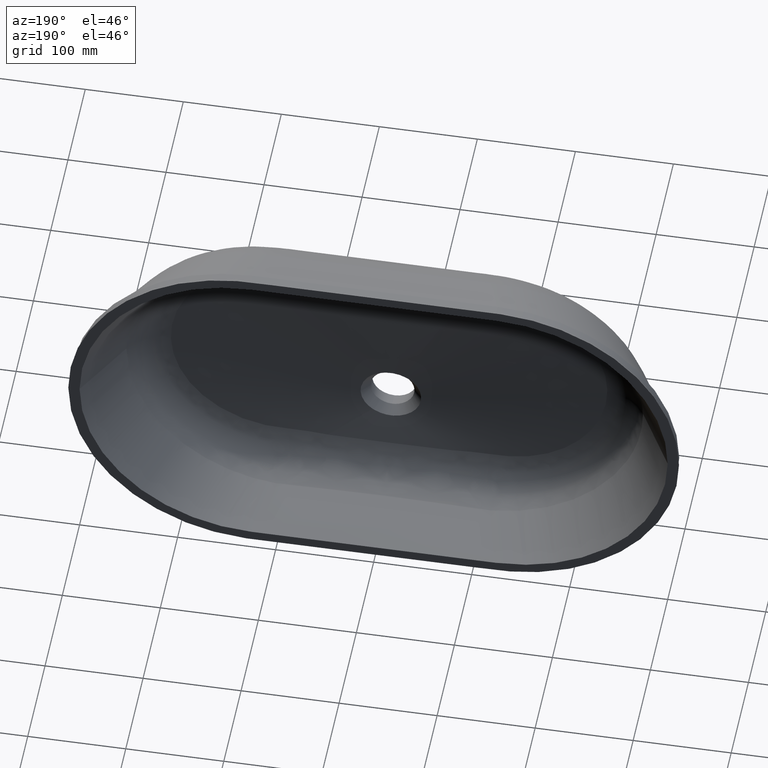
[diagram: clean part render]
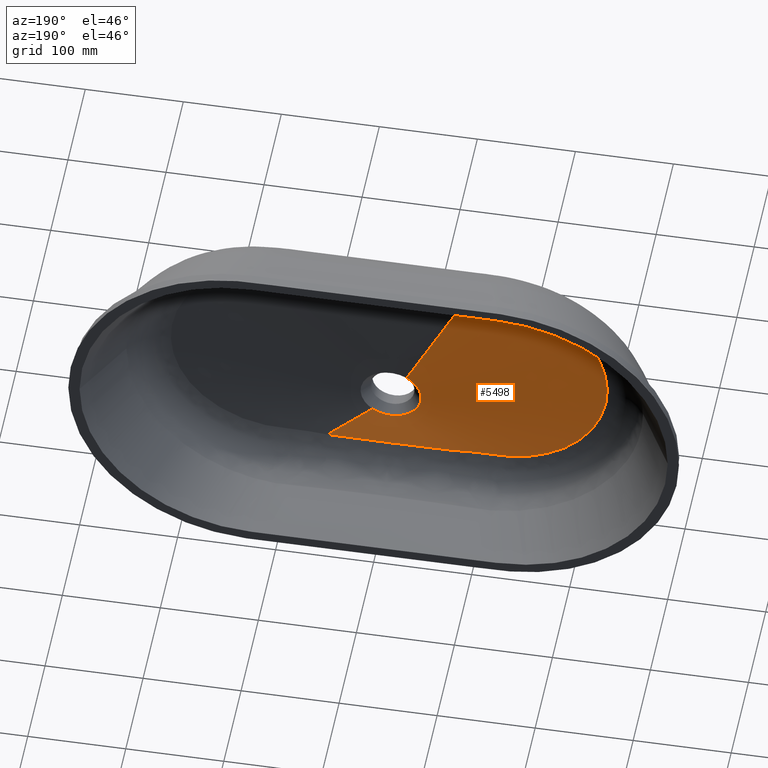
[diagram: same view with one face highlighted and labeled with its STEP entity id]
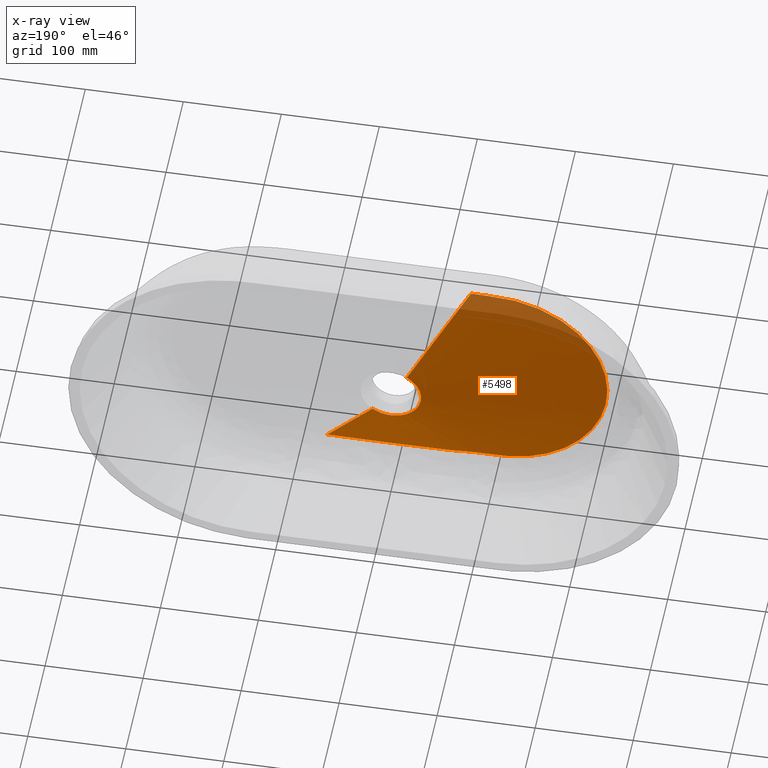
[diagram: x-ray of the same camera — body ghosted, the highlighted face saturated]
A machine part, auxiliary view. The second image highlights one B-rep face of the part: STEP entity #5498.
The next image is the same camera in x-ray: the body ghosted, the highlighted face saturated — about 10% of this face is hidden behind the body in this view.
In plain terms, the highlighted face is a freeform B-spline surface patch.
Its self-contained STEP definition (entity closure, byte-faithful):
#42 = CARTESIAN_POINT ( 'NONE',  ( -210.2141760574837400, -89.68244106979933900, -52.74377238758960800 ) ) ;
#89 = EDGE_LOOP ( 'NONE', ( #813, #12554, #10203, #6329, #12042, #7939, #1070, #1774, #9873 ) ) ;
#91 = CARTESIAN_POINT ( 'NONE',  ( -181.1353970434741400, -90.15538401741783000, -89.24667626049492200 ) ) ;
#139 = CARTESIAN_POINT ( 'NONE',  ( -128.8561717848450000, -91.37133102271688800, -113.8427733234686500 ) ) ;
#200 = CARTESIAN_POINT ( 'NONE',  ( -10.56399546048313100, -93.17210727198754200, -118.7070366645937400 ) ) ;
#372 = CARTESIAN_POINT ( 'NONE',  ( 11.26903914414406300, -98.92946949871009100, -82.86315249133220100 ) ) ;
#380 = CARTESIAN_POINT ( 'NONE',  ( -64.97864767364967500, -93.03465915571679500, -117.9178534782612800 ) ) ;
#414 = CARTESIAN_POINT ( 'NONE',  ( -63.37835600430205600, -93.02130625830906800, -118.0817034032797300 ) ) ;
#415 = CARTESIAN_POINT ( 'NONE',  ( -1.030472474279605600, -98.78094531821456300, -84.85872053757634600 ) ) ;
#424 = CARTESIAN_POINT ( 'NONE',  ( 47.76548382421341900, -88.00000000000000000, -150.0000000000000300 ) ) ;
#461 = CARTESIAN_POINT ( 'NONE',  ( -12.70158110663061600, -98.96764877946368700, -82.30629011800850500 ) ) ;
#469 = CARTESIAN_POINT ( 'NONE',  ( -48.17471189580571400, -87.88000000000002400, -150.7347821827186200 ) ) ;
#491 = CARTESIAN_POINT ( 'NONE',  ( 63.37835601333258500, -93.02130625835202700, -118.0817034030068000 ) ) ;
#505 = CARTESIAN_POINT ( 'NONE',  ( -19.34528003607442100, -99.19528162325922000, -78.45346382285605100 ) ) ;
#513 = CARTESIAN_POINT ( 'NONE',  ( -16.84956898645438300, -100.0000000000000600, -70.00015183223983700 ) ) ;
#547 = CARTESIAN_POINT ( 'NONE',  ( -25.89374652197968300, -99.39962089012310300, -71.50126389164496700 ) ) ;
#556 = CARTESIAN_POINT ( 'NONE',  ( -238.8729941768417300, -88.00000000000032700, -59.32723945347199600 ) ) ;
#590 = CARTESIAN_POINT ( 'NONE',  ( -30.90592213922047900, -99.54818831229279400, -55.96960504293990400 ) ) ;
#598 = CARTESIAN_POINT ( 'NONE',  ( -241.0426057087350100, -87.88000000000033700, 60.41709545004238200 ) ) ;
#637 = CARTESIAN_POINT ( 'NONE',  ( -26.81109098733077900, -99.57056555676490500, -39.52275871349595300 ) ) ;
#645 = CARTESIAN_POINT ( 'NONE',  ( -14.82969170129110000, -100.0000000000000100, -37.99737058841694900 ) ) ;
#679 = CARTESIAN_POINT ( 'NONE',  ( -18.83371103287631600, -99.52869482732529600, -30.50357466003010400 ) ) ;
#708 = CARTESIAN_POINT ( 'NONE',  ( -94.76640055577419700, -90.24578413310402400, 114.6060637494476400 ) ) ;
#753 = CARTESIAN_POINT ( 'NONE',  ( 18.47985898137255800, -99.16310050808461100, -79.07867887425197800 ) ) ;
#775 = CARTESIAN_POINT ( 'NONE',  ( -48.17471189580565000, -87.88000000000009500, 151.8347821827186400 ) ) ;
#813 = ORIENTED_EDGE ( 'NONE', *, *, #1851, .F. ) ;
#821 = CARTESIAN_POINT ( 'NONE',  ( 9.879426128300423200, -100.0000000000001300, -34.70191174620815400 ) ) ;
#864 = CARTESIAN_POINT ( 'NONE',  ( 155.6543491055487900, -88.00000000000018500, 140.2923229600597800 ) ) ;
#885 = CARTESIAN_POINT ( 'NONE',  ( -107.3282092348471900, -90.13538436208428100, 114.4792455507690500 ) ) ;
#907 = CARTESIAN_POINT ( 'NONE',  ( 241.0426057135514100, -87.88000000000019400, 60.41709543781662700 ) ) ;
#932 = CARTESIAN_POINT ( 'NONE',  ( -143.0213047325501100, -89.77254739109231700, 109.3377191330779700 ) ) ;
#956 = CARTESIAN_POINT ( 'NONE',  ( 21.11373157735133800, -100.0000000000000400, -62.93279213527102900 ) ) ;
#980 = CARTESIAN_POINT ( 'NONE',  ( -182.8302945822169400, -89.50530951369924500, 87.04740869638882800 ) ) ;
#1001 = CARTESIAN_POINT ( 'NONE',  ( 128.0323621380956600, -88.00000000000001400, -148.2711514030990300 ) ) ;
#1022 = CARTESIAN_POINT ( 'NONE',  ( -212.4284805120735200, -89.39261130862202300, 47.37466013551724600 ) ) ;
#1049 = CARTESIAN_POINT ( 'NONE',  ( 63.37835601333258500, -93.02130625835202700, -118.0817034030068000 ) ) ;
#1067 = CARTESIAN_POINT ( 'NONE',  ( -221.9009045032889800, -89.47361659569485000, -13.60758240433803900 ) ) ;
#1070 = ORIENTED_EDGE ( 'NONE', *, *, #5456, .F. ) ;
#1116 = CARTESIAN_POINT ( 'NONE',  ( -207.3571634923244500, -89.72675046631152900, -57.92003888605015800 ) ) ;
#1139 = EDGE_CURVE ( 'NONE', #12799, #3058, #10883, .T. ) ;
#1168 = CARTESIAN_POINT ( 'NONE',  ( -174.9944495283639000, -90.26715964344042200, -94.08551430747883200 ) ) ;
#1213 = CARTESIAN_POINT ( 'NONE',  ( -117.4059624793350300, -91.74893904101426800, -115.3342498117992700 ) ) ;
#1230 = B_SPLINE_CURVE_WITH_KNOTS ( 'NONE', 3,
 ( #3937, #1408, #3566, #11079, #4647, #12153, #5723, #13230, #6803, #380, #7880, #1454 ),
 .UNSPECIFIED., .F., .F.,
 ( 4, 2, 2, 2, 2, 4 ),
 ( 0.0000000000000000000, 0.01927991767656985600, 0.02891987651485478400, 0.03373985593399724700, 0.03614984564356848300, 0.03855983535313971300 ),
 .UNSPECIFIED. ) ;
#1276 = CARTESIAN_POINT ( 'NONE',  ( 5.282098644400663900, -93.17577609122088200, -118.7297332430255500 ) ) ;
#1299 = VERTEX_POINT ( 'NONE', #10405 ) ;
#1330 = B_SPLINE_CURVE_WITH_KNOTS ( 'NONE', 3,
 ( #3899, #2825, #708, #8209 ),
 .UNSPECIFIED., .F., .F.,
 ( 4, 4 ),
 ( -5.999574261831511900E-008, 0.01699557451059100600 ),
 .UNSPECIFIED. ) ;
#1408 = CARTESIAN_POINT ( 'NONE',  ( -95.44128360301975500, -92.54768217177586100, -115.9998173478476100 ) ) ;
#1445 = CARTESIAN_POINT ( 'NONE',  ( 9.839826337820902300, -98.89479256815890600, -83.35389863412591200 ) ) ;
#1454 = CARTESIAN_POINT ( 'NONE',  ( -63.37835600430205600, -93.02130625830906800, -118.0817034032797300 ) ) ;
#1490 = CARTESIAN_POINT ( 'NONE',  ( -2.532415862470653900, -98.78744496477229100, -84.77657310322872800 ) ) ;
#1498 = CARTESIAN_POINT ( 'NONE',  ( 3.506484525636429000, -100.0000000000000400, -77.31596547917139600 ) ) ;
#1532 = CARTESIAN_POINT ( 'NONE',  ( -15.38453732477003100, -99.05085556097971300, -81.01322194515600500 ) ) ;
#1539 = CARTESIAN_POINT ( 'NONE',  ( -72.73116849587792400, -88.00000000000002800, -150.0000000000000300 ) ) ;
#1571 = CARTESIAN_POINT ( 'NONE',  ( -19.92491487163981700, -99.21599952503605400, -78.00462896831933800 ) ) ;
#1579 = CARTESIAN_POINT ( 'NONE',  ( -157.0423968907762200, -87.88000000000036500, -140.9952446773397400 ) ) ;
#1617 = CARTESIAN_POINT ( 'NONE',  ( -26.69448352924216600, -99.42122640361185400, -70.23280571784529500 ) ) ;
#1627 = CARTESIAN_POINT ( 'NONE',  ( -22.39280092748667500, -99.99999999999994300, -57.68675341049998900 ) ) ;
#1664 = CARTESIAN_POINT ( 'NONE',  ( -30.86934117635564700, -99.55964380861310300, -52.94891640018754900 ) ) ;
#1671 = CARTESIAN_POINT ( 'NONE',  ( -224.2717690377855300, -87.99999999999961600, 85.77612991257059600 ) ) ;
#1706 = CARTESIAN_POINT ( 'NONE',  ( -25.17336394763924500, -99.56466225391648100, -36.99115008073621900 ) ) ;
#1714 = CARTESIAN_POINT ( 'NONE',  ( -129.1643888320011500, -87.87999999999974000, 150.1338366244627600 ) ) ;
#1748 = CARTESIAN_POINT ( 'NONE',  ( -17.60103750336305900, -99.51981779715474400, -29.61590072624621700 ) ) ;
#1774 = ORIENTED_EDGE ( 'NONE', *, *, #10658, .F. ) ;
#1848 = CARTESIAN_POINT ( 'NONE',  ( -23.66615331633811400, -88.00000000000002800, 150.0000000000000900 ) ) ;
#1851 = EDGE_CURVE ( 'NONE', #9335, #1299, #11226, .T. ) ;
#1893 = CARTESIAN_POINT ( 'NONE',  ( 73.35968594787345900, -87.88000000000003800, 151.8470191174620300 ) ) ;
#1937 = CARTESIAN_POINT ( 'NONE',  ( 18.57653582101703500, -100.0000000000000300, -42.20357343620475600 ) ) ;
#1963 = CARTESIAN_POINT ( 'NONE',  ( -109.7914240597129100, -90.10737402809702700, 114.4566772172219200 ) ) ;
#1986 = CARTESIAN_POINT ( 'NONE',  ( 247.9479422449960000, -87.99999999999955900, 30.32419461782492900 ) ) ;
#2010 = CARTESIAN_POINT ( 'NONE',  ( -150.3806503496926400, -89.71399552462037300, 106.6802945336530400 ) ) ;
#2034 = CARTESIAN_POINT ( 'NONE',  ( 226.3033494222987400, -87.87999999999988200, -86.00456327555252800 ) ) ;
#2057 = CARTESIAN_POINT ( 'NONE',  ( -185.0380281242108500, -89.49395606579902600, 85.09225447536759600 ) ) ;
#2080 = CARTESIAN_POINT ( 'NONE',  ( 13.29416763939092000, -100.0000000000000000, -73.17885613971930100 ) ) ;
#2104 = CARTESIAN_POINT ( 'NONE',  ( -216.1014172506139600, -89.38866356124356100, 38.34822966227906700 ) ) ;
#2127 = EDGE_CURVE ( 'NONE', #8266, #3058, #9069, .T. ) ;
#2154 = CARTESIAN_POINT ( 'NONE',  ( -221.2254538512305500, -89.49122342028304900, -18.46211715278004900 ) ) ;
#2201 = CARTESIAN_POINT ( 'NONE',  ( -205.8622903064164100, -89.74988751088346800, -60.46027859644132700 ) ) ;
#2249 = CARTESIAN_POINT ( 'NONE',  ( -165.2030136603684100, -90.45952633751312500, -100.4405927668356100 ) ) ;
#2297 = CARTESIAN_POINT ( 'NONE',  ( -112.5597122073029900, -91.93032678479163200, -115.5395454829288400 ) ) ;
#2362 = CARTESIAN_POINT ( 'NONE',  ( 21.12732958966867300, -93.15771568023355100, -118.6249341591454400 ) ) ;
#2492 = CARTESIAN_POINT ( 'NONE',  ( 12.48075441521085000, -100.0000000000000000, -73.72113162250600700 ) ) ;
#2528 = CARTESIAN_POINT ( 'NONE',  ( 7.916571611666653600, -98.85410003874038400, -83.91129657107957500 ) ) ;
#2572 = CARTESIAN_POINT ( 'NONE',  ( -5.013459571913392300, -98.80930587329913800, -84.49910222872786400 ) ) ;
#2579 = CARTESIAN_POINT ( 'NONE',  ( 23.86775005380083000, -87.87999999999999500, -150.7268403452082500 ) ) ;
#2615 = CARTESIAN_POINT ( 'NONE',  ( -17.30675626421495000, -99.11884952523281800, -79.86552268667675500 ) ) ;
#2623 = CARTESIAN_POINT ( 'NONE',  ( -11.65699048705026000, -100.0000000000000000, -74.27030757461308500 ) ) ;
#2658 = CARTESIAN_POINT ( 'NONE',  ( -20.49208860007710700, -99.23569255155459200, -77.54093556611836400 ) ) ;
#2667 = CARTESIAN_POINT ( 'NONE',  ( -181.6499478217290300, -87.99999999999981500, -126.9687595750102200 ) ) ;
#2668 = EDGE_CURVE ( 'NONE', #9841, #9335, #13038, .T. ) ;
#2703 = CARTESIAN_POINT ( 'NONE',  ( -27.66721167629144100, -99.44706725339619900, -68.49466609615261300 ) ) ;
#2711 = CARTESIAN_POINT ( 'NONE',  ( -250.2034936572195000, -87.87999999999965400, -30.05056903679137300 ) ) ;
#2747 = CARTESIAN_POINT ( 'NONE',  ( -30.52927641753648700, -99.56762328168713300, -49.92318384185357200 ) ) ;
#2754 = CARTESIAN_POINT ( 'NONE',  ( -20.00109056705319000, -100.0000000000000600, -44.57165660337184200 ) ) ;
#2792 = CARTESIAN_POINT ( 'NONE',  ( -23.61200396782799200, -99.55742147612372200, -35.01850737561709100 ) ) ;
#2802 = CARTESIAN_POINT ( 'NONE',  ( -109.2834877922875000, -88.00000000000001400, 150.0000000000000000 ) ) ;
#2825 = CARTESIAN_POINT ( 'NONE',  ( -89.10157322552845500, -90.27094351216197800, 114.6719164009590200 ) ) ;
#2911 = CARTESIAN_POINT ( 'NONE',  ( 18.10813338789226600, -99.14881210641085800, -79.33715554518607900 ) ) ;
#2933 = CARTESIAN_POINT ( 'NONE',  ( -4.869680179930835400E-009, -99.99999999999987200, -32.40781909648730900 ) ) ;
#2980 = CARTESIAN_POINT ( 'NONE',  ( 90.59872789865042400, -88.00000000000001400, 149.9999999999999700 ) ) ;
#2983 = CARTESIAN_POINT ( 'NONE',  ( 18.56171355662563700, -99.16622473570150500, -79.02108878313238400 ) ) ;
#3024 = CARTESIAN_POINT ( 'NONE',  ( 183.2806819588097100, -87.87999999999978200, 128.6604828942666400 ) ) ;
#3044 = CARTESIAN_POINT ( 'NONE',  ( -111.2692878022250500, -90.08970801863782200, 114.4406047417643900 ) ) ;
#3058 = VERTEX_POINT ( 'NONE', #491 ) ;
#3067 = CARTESIAN_POINT ( 'NONE',  ( 22.55399353016777700, -99.99999999999994300, -54.99999999999987900 ) ) ;
#3091 = CARTESIAN_POINT ( 'NONE',  ( -154.0154160344118800, -89.68667518925047900, 105.1618327377183600 ) ) ;
#3116 = CARTESIAN_POINT ( 'NONE',  ( 204.8823477117242600, -87.99999999999988600, -108.6035853985123500 ) ) ;
#3144 = CARTESIAN_POINT ( 'NONE',  ( -189.3514916713893400, -89.47256195017466500, 81.05047674193681900 ) ) ;
#3165 = CARTESIAN_POINT ( 'NONE',  ( 110.2433809976938200, -87.88000000000001000, -150.7682114386028300 ) ) ;
#3187 = CARTESIAN_POINT ( 'NONE',  ( -219.4284829285422800, -89.39201323609125900, 27.15851788675415400 ) ) ;
#3232 = CARTESIAN_POINT ( 'NONE',  ( -220.7270244803954100, -89.50267495376056100, -21.37359993059816400 ) ) ;
#3278 = CARTESIAN_POINT ( 'NONE',  ( -203.2492203074623700, -89.79038842743048600, -64.59744611540590100 ) ) ;
#3327 = CARTESIAN_POINT ( 'NONE',  ( -156.5219462765857900, -90.64688894525704700, -104.9242204709942100 ) ) ;
#3373 = CARTESIAN_POINT ( 'NONE',  ( -111.1017853303396100, -91.98621117383197500, -115.5787205858033100 ) ) ;
#3388 = CARTESIAN_POINT ( 'NONE',  ( -58.09696835002067400, -93.04309955486516500, -118.1457006744777100 ) ) ;
#3439 = CARTESIAN_POINT ( 'NONE',  ( 36.97161413535898300, -93.11922850890489700, -118.4328259879834500 ) ) ;
#3566 = CARTESIAN_POINT ( 'NONE',  ( -89.02029907848459800, -92.74151845799467300, -116.2434004106580500 ) ) ;
#3580 = EDGE_CURVE ( 'NONE', #8266, #4966, #4508, .T. ) ;
#3601 = CARTESIAN_POINT ( 'NONE',  ( 4.984120899780172900, -98.80895505551514200, -84.50360957185419900 ) ) ;
#3609 = CARTESIAN_POINT ( 'NONE',  ( 11.65699048605564100, -100.0000000000000000, -74.27030757527616300 ) ) ;
#3633 = CARTESIAN_POINT ( 'NONE',  ( -16.96410462498746700, -99.51499327143572800, -29.19655856779975900 ) ) ;
#3647 = CARTESIAN_POINT ( 'NONE',  ( -6.973954699787575400, -98.83823136877728600, -84.12069425551540300 ) ) ;
#3655 = CARTESIAN_POINT ( 'NONE',  ( 2.578609461373337900E-008, -87.99999999999998600, -149.9999999999999400 ) ) ;
#3688 = CARTESIAN_POINT ( 'NONE',  ( -100.4311726871532900, -90.20034288837375400, 114.5473389433790000 ) ) ;
#3692 = CARTESIAN_POINT ( 'NONE',  ( -17.93380504203948400, -99.14219380739970700, -79.45525129895233400 ) ) ;
#3700 = CARTESIAN_POINT ( 'NONE',  ( -91.38814526130175900, -87.88000000000001000, -150.7572969242538600 ) ) ;
#3732 = CARTESIAN_POINT ( 'NONE',  ( -21.41169486958288100, -99.26653966895376900, -76.73805935542046100 ) ) ;
#3741 = CARTESIAN_POINT ( 'NONE',  ( -20.00109056705316800, -100.0000000000001000, -65.42834339662823600 ) ) ;
#3777 = CARTESIAN_POINT ( 'NONE',  ( -28.88493255289395700, -99.47933865365291700, -65.76907576352452600 ) ) ;
#3785 = CARTESIAN_POINT ( 'NONE',  ( -251.0267161223375200, -88.00000000000029800, 3.642919299551294900E-013 ) ) ;
#3825 = CARTESIAN_POINT ( 'NONE',  ( -29.89721599824342500, -99.57233314762315500, -46.97384108818385300 ) ) ;
#3832 = CARTESIAN_POINT ( 'NONE',  ( -206.7311602685946400, -87.88000000000055000, 110.1353378327281700 ) ) ;
#3868 = CARTESIAN_POINT ( 'NONE',  ( -22.59904411754157400, -99.55213001751336300, -33.88806126070939900 ) ) ;
#3876 = CARTESIAN_POINT ( 'NONE',  ( -11.65699048705025800, -100.0000000000000000, -35.72969242538690100 ) ) ;
#3899 = CARTESIAN_POINT ( 'NONE',  ( -83.43684795230571200, -90.27103772197664000, 114.7461385923109800 ) ) ;
#3937 = CARTESIAN_POINT ( 'NONE',  ( -101.8650247691651900, -92.32525425755459000, -115.8117397602922400 ) ) ;
#3988 = CARTESIAN_POINT ( 'NONE',  ( 17.48572633875032900, -99.12546098106402300, -79.75065410429230900 ) ) ;
#4013 = CARTESIAN_POINT ( 'NONE',  ( 2.609269791550850000E-008, -87.87999999999993900, 151.8240781909649400 ) ) ;
#4058 = CARTESIAN_POINT ( 'NONE',  ( 13.29416763939093800, -99.99999999999998600, -36.82114386028068500 ) ) ;
#4081 = CARTESIAN_POINT ( 'NONE',  ( -100.4311726871532900, -90.20034288837375400, 114.5473389433790000 ) ) ;
#4103 = CARTESIAN_POINT ( 'NONE',  ( 204.8823477117264200, -88.00000000000027000, 108.6035853985124200 ) ) ;
#4128 = CARTESIAN_POINT ( 'NONE',  ( -114.2240933595964500, -90.05502326366298900, 114.3664686406970800 ) ) ;
#4140 = CARTESIAN_POINT ( 'NONE',  ( -101.8650247691651900, -92.32525425755459000, -115.8117397602922400 ) ) ;
#4153 = CARTESIAN_POINT ( 'NONE',  ( 253.3114433477818700, -87.88000000000040800, 0.5499999999997886600 ) ) ;
#4177 = CARTESIAN_POINT ( 'NONE',  ( -156.7069832924905500, -89.66707235221278400, 103.9496368126141900 ) ) ;
#4202 = CARTESIAN_POINT ( 'NONE',  ( 18.57653582101702500, -100.0000000000000600, -67.79642656379536400 ) ) ;
#4224 = CARTESIAN_POINT ( 'NONE',  ( -197.1502441050008700, -89.43860569815638000, 72.32996287057802900 ) ) ;
#4247 = CARTESIAN_POINT ( 'NONE',  ( 100.0001730612035500, -88.00000000000000000, -150.0000000000000300 ) ) ;
#4268 = CARTESIAN_POINT ( 'NONE',  ( -220.9734252171607200, -89.39938730068982400, 19.47568701227714500 ) ) ;
#4270 = VERTEX_POINT ( 'NONE', #3688 ) ;
#4318 = CARTESIAN_POINT ( 'NONE',  ( -219.5708643195064000, -89.52709526834229300, -27.16046754581709200 ) ) ;
#4364 = CARTESIAN_POINT ( 'NONE',  ( -197.5554043920585600, -89.87967864094824200, -72.50042325430301600 ) ) ;
#4409 = CARTESIAN_POINT ( 'NONE',  ( -151.1096955428283800, -90.77200882362669200, -107.2947528574261000 ) ) ;
#4456 = CARTESIAN_POINT ( 'NONE',  ( -108.6698591732535100, -92.07911810441396500, -115.6328498535650300 ) ) ;
#4471 = CARTESIAN_POINT ( 'NONE',  ( -63.37835600430205600, -93.02130625830906800, -118.0817034032797300 ) ) ;
#4508 = B_SPLINE_CURVE_WITH_KNOTS ( 'NONE', 3,
 ( #8253, #753, #9342, #2911, #10418, #3988, #11496, #5063 ),
 .UNSPECIFIED., .F., .F.,
 ( 4, 2, 2, 4 ),
 ( 0.9905996211348833100, 0.9921875000000000000, 0.9960937500000001100, 1.000000000000000000 ),
 .UNSPECIFIED. ) ;
#4526 = CARTESIAN_POINT ( 'NONE',  ( 52.81560095184190800, -93.06412415367701400, -118.2155844897201000 ) ) ;
#4647 = CARTESIAN_POINT ( 'NONE',  ( -76.19062740675150300, -92.99208381140030600, -116.9811078843623000 ) ) ;
#4686 = CARTESIAN_POINT ( 'NONE',  ( 2.498191790822381200, -98.78723301749163000, -84.77925299088306600 ) ) ;
#4694 = CARTESIAN_POINT ( 'NONE',  ( 91.38814527277628500, -87.88000000000001000, -150.7572969242472400 ) ) ;
#4727 = CARTESIAN_POINT ( 'NONE',  ( -8.434019509430488200, -98.86480825759802800, -83.76523117741824400 ) ) ;
#4735 = CARTESIAN_POINT ( 'NONE',  ( -3.506484534450592200, -100.0000000000000300, -77.31596547770384100 ) ) ;
#4769 = CARTESIAN_POINT ( 'NONE',  ( -18.44979955428683000, -99.16189565596464200, -79.10018397760262600 ) ) ;
#4777 = CARTESIAN_POINT ( 'NONE',  ( -109.2834877922875300, -88.00000000000002800, -150.0000000000000000 ) ) ;
#4783 = CARTESIAN_POINT ( 'NONE',  ( -16.06922349857929800, -99.50797789106992800, -28.64108659326786800 ) ) ;
#4813 = CARTESIAN_POINT ( 'NONE',  ( -23.15047235840353700, -99.32133638691541900, -75.01759837315799500 ) ) ;
#4823 = CARTESIAN_POINT ( 'NONE',  ( -206.7311602685946900, -87.88000000000016600, -109.0353378327286000 ) ) ;
#4859 = CARTESIAN_POINT ( 'NONE',  ( -29.83134591181750000, -99.50570164177894100, -62.91477500411895800 ) ) ;
#4866 = CARTESIAN_POINT ( 'NONE',  ( -22.39280092748668200, -99.99999999999994300, -52.31324658949992600 ) ) ;
#4902 = CARTESIAN_POINT ( 'NONE',  ( -28.97754295936668700, -99.57407429937733000, -44.10040320126587700 ) ) ;
#4908 = CARTESIAN_POINT ( 'NONE',  ( -181.6499478217296500, -87.99999999999936100, 126.9687595750109600 ) ) ;
#4941 = CARTESIAN_POINT ( 'NONE',  ( -21.52534553587663500, -99.54602990151221300, -32.80382209666751700 ) ) ;
#4943 = FACE_OUTER_BOUND ( 'NONE', #89, .T. ) ;
#4950 = CARTESIAN_POINT ( 'NONE',  ( -91.38814526130175900, -87.88000000000001000, 151.8572969242538600 ) ) ;
#4966 = VERTEX_POINT ( 'NONE', #5955 ) ;
#5063 = CARTESIAN_POINT ( 'NONE',  ( 17.06581701713230700, -99.11011970834894700, -80.01645097092998100 ) ) ;
#5085 = CARTESIAN_POINT ( 'NONE',  ( 23.66615336540319000, -87.99999999999998600, 149.9999999999999700 ) ) ;
#5131 = CARTESIAN_POINT ( 'NONE',  ( 110.2433809976939200, -87.88000000000001000, 151.8682114386027700 ) ) ;
#5181 = CARTESIAN_POINT ( 'NONE',  ( 21.11373157735135200, -100.0000000000000000, -47.06720786472902800 ) ) ;
#5203 = CARTESIAN_POINT ( 'NONE',  ( -120.1235401883218700, -89.98968299455548000, 113.9516280659949400 ) ) ;
#5227 = CARTESIAN_POINT ( 'NONE',  ( 247.9479422449957400, -87.99999999999967300, -30.32419461782519200 ) ) ;
#5251 = CARTESIAN_POINT ( 'NONE',  ( -164.5631446981515200, -89.61264898401165600, 99.97745974803244500 ) ) ;
#5273 = CARTESIAN_POINT ( 'NONE',  ( 183.2806819588105300, -87.88000000000013800, -127.5604828942677500 ) ) ;
#5297 = CARTESIAN_POINT ( 'NONE',  ( -204.0067814700836100, -89.41359862497594700, 62.88434404922573200 ) ) ;
#5343 = CARTESIAN_POINT ( 'NONE',  ( -221.8294716156501600, -89.40723112108298700, 13.62901916408993100 ) ) ;
#5392 = CARTESIAN_POINT ( 'NONE',  ( -216.2989574828222300, -89.58524242981130200, -38.38863443710441500 ) ) ;
#5437 = CARTESIAN_POINT ( 'NONE',  ( -189.8290445727431600, -90.00522713386190800, -81.27425674331787800 ) ) ;
#5456 = EDGE_CURVE ( 'NONE', #7667, #12799, #1230, .T. ) ;
#5484 = CARTESIAN_POINT ( 'NONE',  ( -143.7934995966071200, -90.95191243161055200, -110.0368084542112100 ) ) ;
#5498 = ADVANCED_FACE ( 'NONE', ( #4943 ), #11903, .F. ) ;
#5531 = CARTESIAN_POINT ( 'NONE',  ( -103.8083004194953200, -92.25796656048201800, -115.7548435394112700 ) ) ;
#5545 = CARTESIAN_POINT ( 'NONE',  ( -36.97162345518959400, -93.11922847980267200, -118.4328258596008000 ) ) ;
#5595 = CARTESIAN_POINT ( 'NONE',  ( 63.37835601333258500, -93.02130625835202700, -118.0817034030068000 ) ) ;
#5714 = CARTESIAN_POINT ( 'NONE',  ( 15.35794194334021300, -99.04996639472371100, -81.02761853033371200 ) ) ;
#5723 = CARTESIAN_POINT ( 'NONE',  ( -69.78187070022433100, -93.04189953173066400, -117.4761728196152700 ) ) ;
#5759 = CARTESIAN_POINT ( 'NONE',  ( 0.9896981495082898300, -98.78084191412948200, -84.86002892346930100 ) ) ;
#5767 = CARTESIAN_POINT ( 'NONE',  ( 72.73116852391723300, -88.00000000000000000, -150.0000000000000300 ) ) ;
#5789 = CARTESIAN_POINT ( 'NONE',  ( -16.38119053773948900, -99.51045630468742300, -28.82955661212498200 ) ) ;
#5803 = CARTESIAN_POINT ( 'NONE',  ( -9.884708477112361900, -98.89581875314661400, -83.33961700210042500 ) ) ;
#5812 = CARTESIAN_POINT ( 'NONE',  ( -23.86775000415703500, -87.88000000000001000, -150.7268403452229700 ) ) ;
#5850 = CARTESIAN_POINT ( 'NONE',  ( -18.75215540416325800, -99.17338803490939400, -78.88710157785162400 ) ) ;
#5858 = CARTESIAN_POINT ( 'NONE',  ( -14.82969170129110400, -100.0000000000000100, -72.00262941158305800 ) ) ;
#5890 = CARTESIAN_POINT ( 'NONE',  ( -24.42353442339473400, -99.35857182070381600, -73.51202261483729200 ) ) ;
#5898 = CARTESIAN_POINT ( 'NONE',  ( -224.2717690377854800, -87.99999999999975800, -85.77612991257026900 ) ) ;
#5934 = CARTESIAN_POINT ( 'NONE',  ( -30.49213209392890500, -99.52698366659075200, -59.95560146219148100 ) ) ;
#5941 = CARTESIAN_POINT ( 'NONE',  ( -250.2034936572197800, -87.87999999999969700, 31.15056903679175100 ) ) ;
#5955 = CARTESIAN_POINT ( 'NONE',  ( 17.06581701713230700, -99.11011970834894700, -80.01645097092998100 ) ) ;
#5977 = CARTESIAN_POINT ( 'NONE',  ( -28.19054832911487600, -99.57351486696129000, -42.23093560107444900 ) ) ;
#5986 = CARTESIAN_POINT ( 'NONE',  ( -16.84956898645438300, -100.0000000000000300, -39.99984816776018400 ) ) ;
#6021 = CARTESIAN_POINT ( 'NONE',  ( -20.40361977625921200, -99.53914955165312500, -31.77890169149909400 ) ) ;
#6029 = CARTESIAN_POINT ( 'NONE',  ( -72.73116849587792400, -88.00000000000005700, 150.0000000000000000 ) ) ;
#6165 = CARTESIAN_POINT ( 'NONE',  ( 6.842672487174672500, -99.99999999999982900, -33.47821826969244100 ) ) ;
#6210 = CARTESIAN_POINT ( 'NONE',  ( 128.0323621380956400, -87.99999999999988600, 148.2711514030986600 ) ) ;
#6257 = CARTESIAN_POINT ( 'NONE',  ( 226.3033494222971700, -87.87999999999985300, 87.10456327555219500 ) ) ;
#6280 = CARTESIAN_POINT ( 'NONE',  ( -127.8932875633697400, -89.90932673813225100, 112.9756283682740700 ) ) ;
#6304 = CARTESIAN_POINT ( 'NONE',  ( 21.91184098715716300, -100.0000000000000000, -60.34163979788768000 ) ) ;
#6329 = ORIENTED_EDGE ( 'NONE', *, *, #3580, .F. ) ;
#6331 = CARTESIAN_POINT ( 'NONE',  ( -174.4138172813940200, -89.55150216864517200, 93.72270212445772600 ) ) ;
#6352 = CARTESIAN_POINT ( 'NONE',  ( 155.6543491055481900, -88.00000000000002800, -140.2923229600596100 ) ) ;
#6375 = CARTESIAN_POINT ( 'NONE',  ( -208.9554733309415400, -89.39973734059070400, 54.42420248799532300 ) ) ;
#6419 = CARTESIAN_POINT ( 'NONE',  ( -222.6398078436898800, -89.42473031384705000, 3.891234512835224400 ) ) ;
#6440 = CARTESIAN_POINT ( 'NONE',  ( -17.17641156736119600, -99.51660186134111500, -29.33634538133292200 ) ) ;
#6465 = CARTESIAN_POINT ( 'NONE',  ( -211.9207190374880000, -89.65577476252808300, -49.22125664836296700 ) ) ;
#6515 = CARTESIAN_POINT ( 'NONE',  ( -184.1103100469035500, -90.10298421235150100, -86.67847147581801400 ) ) ;
#6565 = CARTESIAN_POINT ( 'NONE',  ( -132.6259539000233800, -91.25858518278403200, -113.0865382581311000 ) ) ;
#6624 = CARTESIAN_POINT ( 'NONE',  ( -21.12734490325279400, -93.15771565118032500, -118.6249340008680100 ) ) ;
#6746 = CARTESIAN_POINT ( 'NONE',  ( 16.22287494015782300, -99.07963783927874600, -80.54325533987857000 ) ) ;
#6794 = CARTESIAN_POINT ( 'NONE',  ( 12.67082695500372600, -98.96676618195508000, -82.31949010131353400 ) ) ;
#6803 = CARTESIAN_POINT ( 'NONE',  ( -66.57939155942169400, -93.04162644883985000, -117.7636274055241800 ) ) ;
#6842 = CARTESIAN_POINT ( 'NONE',  ( -0.5274393500948459900, -98.77999650135412000, -84.87075866238292600 ) ) ;
#6850 = CARTESIAN_POINT ( 'NONE',  ( 6.842672487174629800, -100.0000000000000700, -76.52178173030746700 ) ) ;
#6872 = CARTESIAN_POINT ( 'NONE',  ( -16.06922349857929800, -99.50797789106992800, -28.64108659326786800 ) ) ;
#6886 = CARTESIAN_POINT ( 'NONE',  ( -11.30719134241911100, -98.93045419791863500, -82.84895907374526300 ) ) ;
#6892 = CARTESIAN_POINT ( 'NONE',  ( -47.76548378291200700, -88.00000000000002800, -150.0000000000000300 ) ) ;
#6927 = CARTESIAN_POINT ( 'NONE',  ( -19.14938846199537500, -99.18813705605109000, -78.59963214602102300 ) ) ;
#6935 = CARTESIAN_POINT ( 'NONE',  ( -129.1643888320005300, -87.87999999999974000, -149.0338366244625700 ) ) ;
#6967 = CARTESIAN_POINT ( 'NONE',  ( -25.32335987407851300, -99.38392951588353700, -72.32474586313087200 ) ) ;
#6976 = CARTESIAN_POINT ( 'NONE',  ( -21.91184098748562500, -100.0000000000000000, -60.34163979646285700 ) ) ;
#7015 = CARTESIAN_POINT ( 'NONE',  ( -30.85182818377639800, -99.54357427680010100, -56.97050066880955700 ) ) ;
#7022 = CARTESIAN_POINT ( 'NONE',  ( -238.8729941768414700, -88.00000000000032700, 59.32723945347228800 ) ) ;
#7057 = CARTESIAN_POINT ( 'NONE',  ( -27.52669549160258500, -99.57233468741843300, -40.85816709331709300 ) ) ;
#7064 = CARTESIAN_POINT ( 'NONE',  ( -157.0423968907753900, -87.88000000000052100, 142.0952446773394200 ) ) ;
#7098 = CARTESIAN_POINT ( 'NONE',  ( -19.23410397009216100, -99.53145079982634500, -30.81262264081989200 ) ) ;
#7106 = CARTESIAN_POINT ( 'NONE',  ( -6.842672493540797900, -99.99999999999975800, -33.47821827186154300 ) ) ;
#7198 = CARTESIAN_POINT ( 'NONE',  ( -47.76548378291194300, -88.00000000000008500, 150.0000000000000300 ) ) ;
#7241 = CARTESIAN_POINT ( 'NONE',  ( 48.17471193758385800, -87.88000000000006700, 151.8347821826968400 ) ) ;
#7285 = CARTESIAN_POINT ( 'NONE',  ( 16.84956898490910900, -100.0000000000000300, -39.99984816614144000 ) ) ;
#7309 = CARTESIAN_POINT ( 'NONE',  ( -104.3723448757509500, -90.16625921322366800, 114.5073487105390100 ) ) ;
#7336 = CARTESIAN_POINT ( 'NONE',  ( 238.8729941816069100, -88.00000000000018500, 59.32723944138168500 ) ) ;
#7361 = CARTESIAN_POINT ( 'NONE',  ( -139.2871737913982300, -89.80423414200144800, 110.4433332794528300 ) ) ;
#7384 = CARTESIAN_POINT ( 'NONE',  ( 241.0426057135498500, -87.88000000000026500, -59.31709543781692400 ) ) ;
#7407 = CARTESIAN_POINT ( 'NONE',  ( -180.5876549646281100, -89.51714801379576200, 88.94896340406248200 ) ) ;
#7428 = CARTESIAN_POINT ( 'NONE',  ( 14.82969170010050400, -100.0000000000000100, -72.00262941251800400 ) ) ;
#7452 = CARTESIAN_POINT ( 'NONE',  ( -211.6088390045498200, -89.39403464649686300, 49.15176469018200600 ) ) ;
#7502 = CARTESIAN_POINT ( 'NONE',  ( -222.4736198187321500, -89.45461642354757700, -7.778980390611382100 ) ) ;
#7546 = CARTESIAN_POINT ( 'NONE',  ( -207.8428441880332700, -89.71922752547662600, -57.06176586659524500 ) ) ;
#7592 = CARTESIAN_POINT ( 'NONE',  ( -179.6204499496566600, -90.18253663740507900, -90.48797805154593700 ) ) ;
#7643 = CARTESIAN_POINT ( 'NONE',  ( -121.2461261843466500, -91.61654313073842100, -114.9663501985057500 ) ) ;
#7667 = VERTEX_POINT ( 'NONE', #4140 ) ;
#7705 = CARTESIAN_POINT ( 'NONE',  ( -5.282124631308646700, -93.17577607911884700, -118.7297331698532300 ) ) ;
#7871 = CARTESIAN_POINT ( 'NONE',  ( 10.79463711771098200, -98.91749458857411500, -83.03439236817462200 ) ) ;
#7880 = CARTESIAN_POINT ( 'NONE',  ( -64.17729562088395300, -93.02911954820236000, -117.9981966675218700 ) ) ;
#7915 = CARTESIAN_POINT ( 'NONE',  ( -2.032960721463140000, -98.78467026965228100, -84.81162160801433500 ) ) ;
#7922 = CARTESIAN_POINT ( 'NONE',  ( 48.17471193758380100, -87.87999999999999500, -150.7347821826969600 ) ) ;
#7939 = ORIENTED_EDGE ( 'NONE', *, *, #1139, .F. ) ;
#7956 = CARTESIAN_POINT ( 'NONE',  ( -13.61028720965488500, -98.99442468897538600, -81.90279063717784400 ) ) ;
#7963 = CARTESIAN_POINT ( 'NONE',  ( -9.879426131448322900, -100.0000000000000100, -75.29808825207959400 ) ) ;
#7999 = CARTESIAN_POINT ( 'NONE',  ( -19.73308600469399500, -99.20921214593673200, -78.15590965539098500 ) ) ;
#8008 = CARTESIAN_POINT ( 'NONE',  ( -155.6543490897433300, -88.00000000000035500, -140.2923229660021000 ) ) ;
#8042 = CARTESIAN_POINT ( 'NONE',  ( -26.16866241163965500, -99.40708175846961600, -71.08167855428719400 ) ) ;
#8050 = CARTESIAN_POINT ( 'NONE',  ( -241.0426057087353200, -87.88000000000033700, -59.31709545004209600 ) ) ;
#8085 = CARTESIAN_POINT ( 'NONE',  ( -30.91467857356602900, -99.55622400920198300, -53.95902492617046400 ) ) ;
#8092 = CARTESIAN_POINT ( 'NONE',  ( -21.11373157803635800, -100.0000000000000300, -47.06720786664868700 ) ) ;
#8128 = CARTESIAN_POINT ( 'NONE',  ( -26.29215616582982300, -99.56891359303949700, -38.65981268100177500 ) ) ;
#8137 = CARTESIAN_POINT ( 'NONE',  ( -128.0323621277366900, -87.99999999999974400, 148.2711514045332700 ) ) ;
#8176 = CARTESIAN_POINT ( 'NONE',  ( -18.01701570092410500, -99.52288008597392400, -29.90513767327730600 ) ) ;
#8209 = CARTESIAN_POINT ( 'NONE',  ( -100.4311726871532900, -90.20034288837375400, 114.5473389433790000 ) ) ;
#8253 = CARTESIAN_POINT ( 'NONE',  ( 18.56171355662563700, -99.16622473570150500, -79.02108878313238400 ) ) ;
#8266 = VERTEX_POINT ( 'NONE', #9584 ) ;
#8275 = CARTESIAN_POINT ( 'NONE',  ( -3.506484534450596600, -100.0000000000002300, -32.68403452229634400 ) ) ;
#8320 = CARTESIAN_POINT ( 'NONE',  ( 72.73116852391729000, -88.00000000000004300, 149.9999999999999400 ) ) ;
#8366 = CARTESIAN_POINT ( 'NONE',  ( 157.0423969067551900, -87.88000000000019400, 142.0952446713217800 ) ) ;
#8386 = CARTESIAN_POINT ( 'NONE',  ( -108.3134956327563300, -90.12451578407440400, 114.4700778011249000 ) ) ;
#8409 = CARTESIAN_POINT ( 'NONE',  ( 22.39280092742120600, -99.99999999999995700, -52.31324658874393700 ) ) ;
#8434 = CARTESIAN_POINT ( 'NONE',  ( -148.5499139150925900, -89.72822934566781300, 107.3819304977633800 ) ) ;
#8458 = CARTESIAN_POINT ( 'NONE',  ( 224.2717690475963100, -87.99999999999988600, -85.77612989792596900 ) ) ;
#8483 = CARTESIAN_POINT ( 'NONE',  ( -183.5708913418032800, -89.50146039822068600, 86.40288549028741700 ) ) ;
#8508 = CARTESIAN_POINT ( 'NONE',  ( 129.1643888424756000, -87.88000000000001000, -149.0338366230048200 ) ) ;
#8531 = CARTESIAN_POINT ( 'NONE',  ( -214.7456554516238600, -89.38938747862602000, 41.99637967278204800 ) ) ;
#8581 = CARTESIAN_POINT ( 'NONE',  ( -221.6608083156314700, -89.48037636762511200, -15.54979610793931900 ) ) ;
#8630 = CARTESIAN_POINT ( 'NONE',  ( -206.3671805666284900, -89.74207568222917100, -59.61877189345225500 ) ) ;
#8682 = CARTESIAN_POINT ( 'NONE',  ( -171.8022024118627400, -90.32781089653183000, -96.31532525685155100 ) ) ;
#8728 = CARTESIAN_POINT ( 'NONE',  ( -113.0448511147638000, -91.91200996288562000, -115.5218571920839300 ) ) ;
#8790 = CARTESIAN_POINT ( 'NONE',  ( 10.56397532710803100, -93.17210729146177100, -118.7070367823609000 ) ) ;
#8793 = B_SPLINE_CURVE_WITH_KNOTS ( 'NONE', 3,
 ( #4081, #11589, #7309, #885, #8386, #1963, #9477, #3044, #10556, #4128, #11635, #5203, #12705, #6280, #13780, #7361, #932, #8434, #2010, #9527, #3091, #10603, #4177, #11684, #5251, #12754, #6331, #13825, #7407, #980, #8483, #2057, #9574, #3144, #10647, #4224, #11732, #5297, #12798, #6375, #13873, #7452, #1022, #8531, #2104, #9619, #3187, #10699, #4268, #11778, #5343, #12846, #6419, #13920, #7502, #1067, #8581, #2154, #9666, #3232, #10744, #4318, #11824, #5392, #12891, #6465, #42, #7546, #1116, #8630, #2201, #9714, #3278, #10792, #4364, #11874, #5437, #12940, #6515, #91, #7592, #1168, #8682, #2249, #9760, #3327, #10836, #4409, #11920, #5484, #12987, #6565, #139, #7643, #1213, #8728, #2297, #9806, #3373, #10885, #4456, #11964, #5531, #13040 ),
 .UNSPECIFIED., .F., .F.,
 ( 4, 2, 2, 2, 2, 2, 2, 2, 2, 2, 2, 2, 2, 2, 2, 2, 2, 2, 2, 2, 2, 2, 2, 2, 2, 2, 2, 2, 2, 2, 2, 2, 2, 2, 2, 2, 2, 2, 2, 2, 2, 2, 2, 2, 2, 2, 2, 2, 2, 2, 2, 4 ),
 ( 0.0000000000000000000, 0.005911848358859964200, 0.008867772538289946800, 0.01034573462800493700, 0.01182369671771992800, 0.01773554507657985200, 0.02364739343543977400, 0.03547109015315962800, 0.04729478687087948500, 0.05320663522973941700, 0.05616255940916938000, 0.05911848358859933500, 0.07094218030631901900, 0.08276587702403871700, 0.08867772538289860100, 0.09163364956232854200, 0.09458957374175848400, 0.1064132704594781500, 0.1182369671771978400, 0.1300606638949175200, 0.1359725122537773200, 0.1418843606126371500, 0.1537080573303567800, 0.1655317540480764100, 0.1714436024069362400, 0.1773554507657960600, 0.1891791474835157200, 0.2010028442012353500, 0.2069146925600951500, 0.2098706167395250900, 0.2128265409189549800, 0.2246502376366746600, 0.2364739343543943200, 0.2482976310721140000, 0.2512535552515439100, 0.2542094794309737700, 0.2601213277898336600, 0.2719450245075533700, 0.2837687212252730800, 0.2896805695841329600, 0.2955924179429928500, 0.3074161146607125600, 0.3192398113784322700, 0.3251516597372921500, 0.3310635080961520400, 0.3428872048138717500, 0.3547109015315914600, 0.3665345982493112800, 0.3680125603390263000, 0.3694905224287412500, 0.3724464466081711700, 0.3783582949670309900 ),
 .UNSPECIFIED. ) ;
#8956 = CARTESIAN_POINT ( 'NONE',  ( 9.360345528725634500, -98.88408479585334000, -83.50196687247091600 ) ) ;
#9001 = CARTESIAN_POINT ( 'NONE',  ( -4.025442799539633600, -98.79843136576957400, -84.63730802753443100 ) ) ;
#9009 = CARTESIAN_POINT ( 'NONE',  ( 23.66615336540316200, -88.00000000000000000, -149.9999999999999700 ) ) ;
#9046 = CARTESIAN_POINT ( 'NONE',  ( -16.25049556994255400, -99.08058931756697500, -80.52730972748865700 ) ) ;
#9053 = CARTESIAN_POINT ( 'NONE',  ( -73.35968591952222100, -87.88000000000002400, -150.7470191174792300 ) ) ;
#9069 = B_SPLINE_CURVE_WITH_KNOTS ( 'NONE', 1,
 ( #2983, #1049 ),
 .UNSPECIFIED., .F., .F.,
 ( 2, 2 ),
 ( 0.06948128747359017000, 0.5815578118040003500 ),
 .UNSPECIFIED. ) ;
#9087 = CARTESIAN_POINT ( 'NONE',  ( -20.30441623101662100, -99.22923974337496100, -77.69714186699779600 ) ) ;
#9095 = CARTESIAN_POINT ( 'NONE',  ( -18.57653582245046000, -100.0000000000000900, -67.79642656175633400 ) ) ;
#9128 = CARTESIAN_POINT ( 'NONE',  ( -26.94619117730937700, -99.42793314728869800, -69.80234500438044200 ) ) ;
#9136 = CARTESIAN_POINT ( 'NONE',  ( -247.9479422440538200, -87.99999999999965900, -30.32419462464987700 ) ) ;
#9176 = CARTESIAN_POINT ( 'NONE',  ( -30.67577208192154700, -99.56535791987917600, -50.92256779078858400 ) ) ;
#9185 = CARTESIAN_POINT ( 'NONE',  ( -226.3033494123830300, -87.87999999999961200, 87.10456329036279000 ) ) ;
#9222 = CARTESIAN_POINT ( 'NONE',  ( -24.57322143674183200, -99.56206882791809700, -36.18479425170163200 ) ) ;
#9231 = CARTESIAN_POINT ( 'NONE',  ( -13.29416763988822900, -100.0000000000000000, -36.82114386061221700 ) ) ;
#9265 = CARTESIAN_POINT ( 'NONE',  ( -17.17641156736119600, -99.51660186134111500, -29.33634538133292200 ) ) ;
#9289 = CARTESIAN_POINT ( 'NONE',  ( 100.0001730612035500, -88.00000000000000000, -150.0000000000000300 ) ) ;
#9325 = CARTESIAN_POINT ( 'NONE',  ( -17.17641156736119600, -99.51660186134111500, -29.33634538133292200 ) ) ;
#9335 = VERTEX_POINT ( 'NONE', #4783 ) ;
#9342 = CARTESIAN_POINT ( 'NONE',  ( 18.39594083472709200, -99.15982343869211500, -79.13778253811631200 ) ) ;
#9365 = CARTESIAN_POINT ( 'NONE',  ( -23.86775000415699200, -87.88000000000001000, 151.8268403452230500 ) ) ;
#9412 = CARTESIAN_POINT ( 'NONE',  ( 11.65699048605565700, -100.0000000000000000, -35.72969242472382900 ) ) ;
#9416 = CARTESIAN_POINT ( 'NONE',  ( -83.43684795230571200, -90.27103772197664000, 114.7461385923109800 ) ) ;
#9456 = CARTESIAN_POINT ( 'NONE',  ( 181.6499478386335200, -87.99999999999978700, 126.9687595642619600 ) ) ;
#9477 = CARTESIAN_POINT ( 'NONE',  ( -110.2840902655023000, -90.10145774910805000, 114.4533655414960800 ) ) ;
#9500 = CARTESIAN_POINT ( 'NONE',  ( 250.2034936581717400, -87.87999999999955500, 31.15056902989061900 ) ) ;
#9527 = CARTESIAN_POINT ( 'NONE',  ( -153.1081081071976700, -89.69341526066587300, 105.5514520710096900 ) ) ;
#9552 = CARTESIAN_POINT ( 'NONE',  ( 20.00109056597940000, -100.0000000000000600, -65.42834339878167800 ) ) ;
#9574 = CARTESIAN_POINT ( 'NONE',  ( -185.7656158779911700, -89.49029573546818000, 84.42514144156150700 ) ) ;
#9584 = CARTESIAN_POINT ( 'NONE',  ( 18.56171355662563700, -99.16622473570150500, -79.02108878313238400 ) ) ;
#9596 = CARTESIAN_POINT ( 'NONE',  ( 109.2834877961264700, -88.00000000000001400, -150.0000000000000300 ) ) ;
#9619 = CARTESIAN_POINT ( 'NONE',  ( -218.4427919056981000, -89.38997875283556000, 30.92928581967250800 ) ) ;
#9666 = CARTESIAN_POINT ( 'NONE',  ( -221.0677914239211400, -89.49495720660941300, -19.43272412617780300 ) ) ;
#9714 = CARTESIAN_POINT ( 'NONE',  ( -204.3180854105666200, -89.77380271343066900, -62.96134771155044500 ) ) ;
#9760 = CARTESIAN_POINT ( 'NONE',  ( -161.7964002736781600, -90.53051603451936600, -102.3365623493913400 ) ) ;
#9806 = CARTESIAN_POINT ( 'NONE',  ( -111.5882830488933000, -91.96736994655803700, -115.5685544029299500 ) ) ;
#9819 = CARTESIAN_POINT ( 'NONE',  ( -52.81560477076127600, -93.06412413830807400, -118.2155844392042800 ) ) ;
#9841 = VERTEX_POINT ( 'NONE', #9325 ) ;
#9871 = CARTESIAN_POINT ( 'NONE',  ( 26.40881810330326500, -93.14692908681824700, -118.5663069093990000 ) ) ;
#9873 = ORIENTED_EDGE ( 'NONE', *, *, #11380, .F. ) ;
#10037 = CARTESIAN_POINT ( 'NONE',  ( 6.944257162728023400, -98.83690883495693000, -84.13888882941248000 ) ) ;
#10046 = CARTESIAN_POINT ( 'NONE',  ( 100.8753672476634800, -87.88000000000001000, -150.7627886837749700 ) ) ;
#10084 = CARTESIAN_POINT ( 'NONE',  ( -6.485045812484407300, -98.83039545183325500, -84.22383540526826100 ) ) ;
#10091 = CARTESIAN_POINT ( 'NONE',  ( -4.869725282741210700E-009, -99.99999999999990100, -77.59218090351248500 ) ) ;
#10124 = CARTESIAN_POINT ( 'NONE',  ( -17.51664853259877900, -99.12660476281136800, -79.73063182896734700 ) ) ;
#10131 = CARTESIAN_POINT ( 'NONE',  ( -90.59872788729926200, -88.00000000000001400, -150.0000000000000000 ) ) ;
#10165 = CARTESIAN_POINT ( 'NONE',  ( -21.04885463594225600, -99.25457864931092900, -77.06503162736814300 ) ) ;
#10174 = CARTESIAN_POINT ( 'NONE',  ( -183.2806819417218100, -87.87999999999981100, -127.5604829051427600 ) ) ;
#10203 = ORIENTED_EDGE ( 'NONE', *, *, #13901, .F. ) ;
#10211 = CARTESIAN_POINT ( 'NONE',  ( -28.10304101644553000, -99.45852757407573100, -67.60047876395368900 ) ) ;
#10219 = CARTESIAN_POINT ( 'NONE',  ( -22.55399353012514800, -99.99999999999992900, -54.99999999999994300 ) ) ;
#10257 = CARTESIAN_POINT ( 'NONE',  ( -30.14000423183875600, -99.57110734901245100, -47.94863067386580000 ) ) ;
#10264 = CARTESIAN_POINT ( 'NONE',  ( -204.8823476972922300, -88.00000000000055400, 108.6035854125687600 ) ) ;
#10298 = CARTESIAN_POINT ( 'NONE',  ( -23.28105628592380700, -99.55574517896114600, -34.63660768058910100 ) ) ;
#10306 = CARTESIAN_POINT ( 'NONE',  ( -110.2433809938115000, -87.88000000000001000, 151.8682114386061200 ) ) ;
#10405 = CARTESIAN_POINT ( 'NONE',  ( -83.43684795230571200, -90.27103772197664000, 114.7461385923109800 ) ) ;
#10418 = CARTESIAN_POINT ( 'NONE',  ( 17.90137932492995500, -99.14097195922643400, -79.47699199722909200 ) ) ;
#10440 = CARTESIAN_POINT ( 'NONE',  ( 2.578613971654375400E-008, -87.99999999999994300, 150.0000000000000900 ) ) ;
#10487 = CARTESIAN_POINT ( 'NONE',  ( 91.38814527277637000, -87.88000000000001000, 151.8572969242472100 ) ) ;
#10535 = CARTESIAN_POINT ( 'NONE',  ( 20.00109056597941000, -100.0000000000000300, -44.57165660121845000 ) ) ;
#10556 = CARTESIAN_POINT ( 'NONE',  ( -111.7618149750797200, -90.08388510423689900, 114.4309625612278900 ) ) ;
#10579 = CARTESIAN_POINT ( 'NONE',  ( 251.0267161218648900, -88.00000000000039800, -2.081668171172168500E-013 ) ) ;
#10603 = CARTESIAN_POINT ( 'NONE',  ( -155.8145616502376400, -89.67350614558444000, 104.3610230251536800 ) ) ;
#10625 = CARTESIAN_POINT ( 'NONE',  ( 206.7311602831817100, -87.87999999999988200, -109.0353378185096600 ) ) ;
#10647 = CARTESIAN_POINT ( 'NONE',  ( -192.0559661009986900, -89.46020689394977400, 78.22435982236289900 ) ) ;
#10658 = EDGE_CURVE ( 'NONE', #4270, #7667, #8793, .T. ) ;
#10672 = CARTESIAN_POINT ( 'NONE',  ( 12.48075441521085000, -100.0000000000000000, -73.72113162250600700 ) ) ;
#10699 = CARTESIAN_POINT ( 'NONE',  ( -220.6228537793174100, -89.39726686180222300, 21.40821155628785300 ) ) ;
#10744 = CARTESIAN_POINT ( 'NONE',  ( -220.5440987556829400, -89.50665462911975100, -22.34261071103832600 ) ) ;
#10792 = CARTESIAN_POINT ( 'NONE',  ( -199.9258700325521500, -89.84228069198479700, -69.41303124237352100 ) ) ;
#10836 = CARTESIAN_POINT ( 'NONE',  ( -154.7351838246392200, -90.68736167047372000, -105.7444477233284800 ) ) ;
#10883 = B_SPLINE_CURVE_WITH_KNOTS ( 'NONE', 3,
 ( #4471, #3388, #9819, #10901, #5545, #13054, #6624, #200, #7705, #1276, #8790, #2362, #9871, #3439, #10951, #4526, #12030, #5595 ),
 .UNSPECIFIED., .F., .F.,
 ( 4, 2, 2, 2, 2, 2, 2, 2, 4 ),
 ( -5.974036822005761400E-008, 0.01584540129361949900, 0.03169086232760721900, 0.04753632336159492600, 0.06338178439558263300, 0.07922724542957033900, 0.09507270646355804600, 0.1109181674975457400, 0.1267636285315334500 ),
 .UNSPECIFIED. ) ;
#10885 = CARTESIAN_POINT ( 'NONE',  ( -109.6425183359866700, -92.04228225628112600, -115.6105335115273400 ) ) ;
#10901 = CARTESIAN_POINT ( 'NONE',  ( -42.25294054190993600, -93.10220952417147100, -118.3591098216221100 ) ) ;
#10951 = CARTESIAN_POINT ( 'NONE',  ( 42.25293303913170500, -93.10220955001214800, -118.3591099246234000 ) ) ;
#11068 = CARTESIAN_POINT ( 'NONE',  ( 17.06581701713230700, -99.11011970834894700, -80.01645097092998100 ) ) ;
#11079 = CARTESIAN_POINT ( 'NONE',  ( -79.39703740502501700, -92.94107123555966200, -116.7760261613485300 ) ) ;
#11113 = CARTESIAN_POINT ( 'NONE',  ( 3.994870995756095900, -98.79813065713452100, -84.64113362940170800 ) ) ;
#11120 = CARTESIAN_POINT ( 'NONE',  ( 90.59872789865033800, -88.00000000000001400, -150.0000000000000300 ) ) ;
#11157 = CARTESIAN_POINT ( 'NONE',  ( -7.948379588083448700, -98.85543562571197600, -83.89141612233952100 ) ) ;
#11165 = CARTESIAN_POINT ( 'NONE',  ( 2.609265281269812500E-008, -87.87999999999998100, -150.7240781909648000 ) ) ;
#11200 = CARTESIAN_POINT ( 'NONE',  ( -18.14125872668940100, -99.15006745267686500, -79.31461843710607700 ) ) ;
#11209 = CARTESIAN_POINT ( 'NONE',  ( -13.29416763988823300, -100.0000000000000000, -73.17885613938777600 ) ) ;
#11226 = B_SPLINE_CURVE_WITH_KNOTS ( 'NONE', 1,
 ( #11730, #9416 ),
 .UNSPECIFIED., .F., .F.,
 ( 2, 2 ),
 ( 0.04100148813703018800, 0.8107468558313177800 ),
 .UNSPECIFIED. ) ;
#11245 = CARTESIAN_POINT ( 'NONE',  ( -22.47502542909532900, -99.30074618417023700, -75.72863415522580500 ) ) ;
#11253 = CARTESIAN_POINT ( 'NONE',  ( -204.8823476972922900, -88.00000000000015600, -108.6035854125691900 ) ) ;
#11286 = CARTESIAN_POINT ( 'NONE',  ( -29.23120116268261300, -99.48870947723837300, -64.83088315878245600 ) ) ;
#11294 = CARTESIAN_POINT ( 'NONE',  ( -253.3114433482596200, -87.88000000000030800, 0.5500000000003674200 ) ) ;
#11332 = CARTESIAN_POINT ( 'NONE',  ( -29.31609472917760700, -99.57381845934598600, -45.04988708952601000 ) ) ;
#11340 = CARTESIAN_POINT ( 'NONE',  ( -18.57653582245047000, -100.0000000000000600, -42.20357343824374400 ) ) ;
#11378 = CARTESIAN_POINT ( 'NONE',  ( -22.24661457453168700, -99.55018340121998200, -33.52007593031760300 ) ) ;
#11380 = EDGE_CURVE ( 'NONE', #1299, #4270, #1330, .T. ) ;
#11387 = CARTESIAN_POINT ( 'NONE',  ( -90.59872788729926200, -88.00000000000001400, 150.0000000000000000 ) ) ;
#11496 = CARTESIAN_POINT ( 'NONE',  ( 17.27655077635195000, -99.11774057767534900, -79.88474708562823400 ) ) ;
#11519 = CARTESIAN_POINT ( 'NONE',  ( 3.506484525636417000, -100.0000000000001100, -32.68403452082872500 ) ) ;
#11567 = CARTESIAN_POINT ( 'NONE',  ( 109.2834877961265600, -88.00000000000001400, 149.9999999999999700 ) ) ;
#11589 = CARTESIAN_POINT ( 'NONE',  ( -102.4017623426473700, -90.18453535989399900, 114.5269104967132600 ) ) ;
#11612 = CARTESIAN_POINT ( 'NONE',  ( 206.7311602831839000, -87.88000000000028000, 110.1353378185097300 ) ) ;
#11635 = CARTESIAN_POINT ( 'NONE',  ( -116.1954602715382500, -90.03271180117370400, 114.2625903501839700 ) ) ;
#11658 = CARTESIAN_POINT ( 'NONE',  ( 22.39280092742120600, -99.99999999999997200, -57.68675341125588600 ) ) ;
#11684 = CARTESIAN_POINT ( 'NONE',  ( -161.1338606604896000, -89.63560782566298700, 101.8386055003490200 ) ) ;
#11709 = CARTESIAN_POINT ( 'NONE',  ( 181.6499478386343800, -88.00000000000012800, -126.9687595642630700 ) ) ;
#11730 = CARTESIAN_POINT ( 'NONE',  ( -16.06922349857929800, -99.50797789106992800, -28.64108659326786800 ) ) ;
#11732 = CARTESIAN_POINT ( 'NONE',  ( -199.5402992140701300, -89.42932797242829700, 69.26187650053670100 ) ) ;
#11755 = CARTESIAN_POINT ( 'NONE',  ( 100.8753672476634800, -87.88000000000001000, -150.7627886837749700 ) ) ;
#11778 = CARTESIAN_POINT ( 'NONE',  ( -221.5779082784282300, -89.40437770539999500, 15.57861101054719700 ) ) ;
#11824 = CARTESIAN_POINT ( 'NONE',  ( -218.6024882205676100, -89.54522685789014200, -30.94690034884216700 ) ) ;
#11874 = CARTESIAN_POINT ( 'NONE',  ( -192.5070347381697500, -89.96115814108662800, -78.43107011902182500 ) ) ;
#11903 = B_SPLINE_SURFACE_WITH_KNOTS ( 'NONE', 3, 1, ( 
 ( #2492, #9289, #10046 ),
 ( #3609, #11120, #4694 ),
 ( #12195, #5767, #13271 ),
 ( #6850, #424, #7922 ),
 ( #1498, #9009, #2579 ),
 ( #10091, #3655, #11165 ),
 ( #4735, #12242, #5812 ),
 ( #13315, #6892, #469 ),
 ( #7963, #1539, #9053 ),
 ( #2623, #10131, #3700 ),
 ( #11209, #4777, #12285 ),
 ( #5858, #13358, #6935 ),
 ( #513, #8008, #1579 ),
 ( #9095, #2667, #10174 ),
 ( #3741, #11253, #4823 ),
 ( #12325, #5898, #13405 ),
 ( #6976, #556, #8050 ),
 ( #1627, #9136, #2711 ),
 ( #10219, #3785, #11294 ),
 ( #4866, #12370, #5941 ),
 ( #13446, #7022, #598 ),
 ( #8092, #1671, #9185 ),
 ( #2754, #10264, #3832 ),
 ( #11340, #4908, #12414 ),
 ( #5986, #13486, #7064 ),
 ( #645, #8137, #1714 ),
 ( #9231, #2802, #10306 ),
 ( #3876, #11387, #4950 ),
 ( #12456, #6029, #13532 ),
 ( #7106, #7198, #775 ),
 ( #8275, #1848, #9365 ),
 ( #2933, #10440, #4013 ),
 ( #11519, #5085, #12589 ),
 ( #6165, #13664, #7241 ),
 ( #821, #8320, #1893 ),
 ( #9412, #2980, #10487 ),
 ( #4058, #11567, #5131 ),
 ( #12632, #6210, #13710 ),
 ( #7285, #864, #8366 ),
 ( #1937, #9456, #3024 ),
 ( #10535, #4103, #11612 ),
 ( #5181, #12678, #6257 ),
 ( #13756, #7336, #907 ),
 ( #8409, #1986, #9500 ),
 ( #3067, #10579, #4153 ),
 ( #11658, #5227, #12729 ),
 ( #6304, #13802, #7384 ),
 ( #956, #8458, #2034 ),
 ( #9552, #3116, #10625 ),
 ( #4202, #11709, #5273 ),
 ( #12776, #6352, #13847 ),
 ( #7428, #1001, #8508 ),
 ( #2080, #9596, #3165 ),
 ( #10672, #4247, #11755 ) ),
 .UNSPECIFIED., .T., .F., .F.,
 ( 4, 1, 1, 1, 1, 1, 1, 1, 2, 1, 1, 1, 1, 1, 1, 1, 1, 1, 1, 1, 1, 1, 1, 1, 2, 1, 1, 1, 1, 1, 1, 1, 2, 1, 1, 1, 1, 1, 1, 1, 1, 1, 1, 1, 1, 1, 1, 1, 4 ),
 ( 2, 1, 2 ),
 ( 0.0000000000000000000, 0.02100932330980575000, 0.04201864661961150100, 0.06302796992941724100, 0.08403729323922300200, 0.1050466165490287300, 0.1260559398588344800, 0.1470652631686402400, 0.1680745864784460000, 0.1888199248424088100, 0.2095652632063715900, 0.2303106015703344200, 0.2510559399342972000, 0.2718012782982599500, 0.2925466166622227600, 0.3132919550261855600, 0.3340372933901483200, 0.3547826317541110700, 0.3755279701180739300, 0.3962733084820366800, 0.4170186468459994300, 0.4377639852099621800, 0.4585093235739250400, 0.4792546619378877900, 0.5000000003018505400, 0.5210093236116563100, 0.5420186469214620700, 0.5630279702312678300, 0.5840372935410735900, 0.6050466168508792400, 0.6260559401606851100, 0.6470652634704907600, 0.6680745867802965200, 0.6888199251065280100, 0.7095652634327593900, 0.7303106017589908700, 0.7510559400852223600, 0.7718012784114538500, 0.7925466167376852300, 0.8132919550639167200, 0.8340372933901483200, 0.8547826317163798000, 0.8755279700426114000, 0.8962733083688427800, 0.9170186466950741600, 0.9377639850213056500, 0.9585093233475370200, 0.9792546616737685100, 1.000000000000000000 ),
 ( 0.0000000000000000000, 1.000000000000000000, 1.010000000000000000 ),
 .UNSPECIFIED. ) ;
#11920 = CARTESIAN_POINT ( 'NONE',  ( -149.2874893301015200, -90.81579435974400400, -108.0178992647912000 ) ) ;
#11964 = CARTESIAN_POINT ( 'NONE',  ( -105.7524722957091800, -92.18783987399182000, -115.7033344489071900 ) ) ;
#12030 = CARTESIAN_POINT ( 'NONE',  ( 58.09696835880785000, -93.04309955811686500, -118.1457006530282600 ) ) ;
#12042 = ORIENTED_EDGE ( 'NONE', *, *, #2127, .T. ) ;
#12153 = CARTESIAN_POINT ( 'NONE',  ( -71.38371700064647000, -93.03383839097055800, -117.3452462069479300 ) ) ;
#12187 = CARTESIAN_POINT ( 'NONE',  ( 1.996446531899570600, -98.78449013082278900, -84.81389847645137100 ) ) ;
#12195 = CARTESIAN_POINT ( 'NONE',  ( 9.879426128300412600, -99.99999999999990100, -75.29808825379181800 ) ) ;
#12219 = CARTESIAN_POINT ( 'NONE',  ( -16.75102251968606700, -99.51334216959728000, -29.05998885291071300 ) ) ;
#12232 = CARTESIAN_POINT ( 'NONE',  ( -9.401458115396051700, -98.88498024228800900, -83.48961588292847600 ) ) ;
#12242 = CARTESIAN_POINT ( 'NONE',  ( -23.66615331633816100, -88.00000000000001400, -150.0000000000000000 ) ) ;
#12277 = CARTESIAN_POINT ( 'NONE',  ( -18.55318408213766200, -99.16594228779389700, -79.02708888302238700 ) ) ;
#12285 = CARTESIAN_POINT ( 'NONE',  ( -110.2433809938115300, -87.88000000000002400, -150.7682114386061000 ) ) ;
#12317 = CARTESIAN_POINT ( 'NONE',  ( -24.11175809521044400, -99.34959464277571300, -73.89539096716181600 ) ) ;
#12325 = CARTESIAN_POINT ( 'NONE',  ( -21.11373157803634400, -100.0000000000000700, -62.93279213335134200 ) ) ;
#12362 = CARTESIAN_POINT ( 'NONE',  ( -30.08655980992687900, -99.51337818309228600, -61.92820070262393300 ) ) ;
#12370 = CARTESIAN_POINT ( 'NONE',  ( -247.9479422440540800, -87.99999999999970200, 30.32419462465024700 ) ) ;
#12407 = CARTESIAN_POINT ( 'NONE',  ( -28.39686572941151300, -99.57374687386285900, -42.69652566067058800 ) ) ;
#12414 = CARTESIAN_POINT ( 'NONE',  ( -183.2806819417224600, -87.87999999999934200, 128.6604829051435100 ) ) ;
#12448 = CARTESIAN_POINT ( 'NONE',  ( -21.15680459085649900, -99.54382587385853800, -32.45570579573225000 ) ) ;
#12456 = CARTESIAN_POINT ( 'NONE',  ( -9.879426131448326500, -100.0000000000002100, -34.70191174792046200 ) ) ;
#12554 = ORIENTED_EDGE ( 'NONE', *, *, #2668, .F. ) ;
#12589 = CARTESIAN_POINT ( 'NONE',  ( 23.86775005380085400, -87.87999999999998100, 151.8268403452082400 ) ) ;
#12632 = CARTESIAN_POINT ( 'NONE',  ( 14.82969170010051500, -100.0000000000000000, -37.99737058748202400 ) ) ;
#12678 = CARTESIAN_POINT ( 'NONE',  ( 224.2717690475947400, -87.99999999999984400, 85.77612989792564200 ) ) ;
#12705 = CARTESIAN_POINT ( 'NONE',  ( -122.0751246937486300, -89.96901945889214900, 113.7451096092551700 ) ) ;
#12729 = CARTESIAN_POINT ( 'NONE',  ( 250.2034936581715100, -87.87999999999966900, -30.05056902989088400 ) ) ;
#12754 = CARTESIAN_POINT ( 'NONE',  ( -171.2033871038121900, -89.57057044748340500, 95.91991379725359900 ) ) ;
#12776 = CARTESIAN_POINT ( 'NONE',  ( 16.84956898490909400, -100.0000000000000300, -70.00015183385863800 ) ) ;
#12798 = CARTESIAN_POINT ( 'NONE',  ( -206.0825616316697900, -89.40721574926159600, 59.57439987689230800 ) ) ;
#12799 = VERTEX_POINT ( 'NONE', #414 ) ;
#12846 = CARTESIAN_POINT ( 'NONE',  ( -222.4346409298659600, -89.41687051738453800, 7.784768014730273600 ) ) ;
#12891 = CARTESIAN_POINT ( 'NONE',  ( -214.9634147833513400, -89.60715731585648300, -42.04379681971119000 ) ) ;
#12940 = CARTESIAN_POINT ( 'NONE',  ( -185.5726775110055100, -90.07769832633738400, -85.34892839977101200 ) ) ;
#12987 = CARTESIAN_POINT ( 'NONE',  ( -140.0945164335201400, -91.04892890064400000, -111.1829922737097000 ) ) ;
#13038 = B_SPLINE_CURVE_WITH_KNOTS ( 'NONE', 3,
 ( #6440, #3633, #12219, #5789, #13293, #6872 ),
 .UNSPECIFIED., .F., .F.,
 ( 4, 2, 4 ),
 ( 0.5000000000000000000, 0.5039062499999847900, 0.5067232978464221200 ),
 .UNSPECIFIED. ) ;
#13040 = CARTESIAN_POINT ( 'NONE',  ( -101.8650247691651900, -92.32525425755459000, -115.8117397602922400 ) ) ;
#13054 = CARTESIAN_POINT ( 'NONE',  ( -26.40883131911583000, -93.14692905643703100, -118.5663067525446500 ) ) ;
#13220 = CARTESIAN_POINT ( 'NONE',  ( 13.58186949269640000, -98.99356554105034400, -81.91594298515545300 ) ) ;
#13230 = CARTESIAN_POINT ( 'NONE',  ( -67.37991007893444400, -93.04306484351839400, -117.6896266919586700 ) ) ;
#13264 = CARTESIAN_POINT ( 'NONE',  ( 0.4821704845881499800, -98.77993964456892700, -84.87148156113926200 ) ) ;
#13271 = CARTESIAN_POINT ( 'NONE',  ( 73.35968594787340200, -87.87999999999999500, -150.7470191174621200 ) ) ;
#13289 = B_SPLINE_CURVE_WITH_KNOTS ( 'NONE', 3,
 ( #11068, #6746, #5714, #13220, #6794, #372, #7871, #1445, #8956, #2528, #10037, #3601, #11113, #4686, #12187, #5759, #13264, #6842, #415, #7915, #1490, #9001, #2572, #10084, #3647, #11157, #4727, #12232, #5803, #13307, #6886, #461, #7956, #1532, #9046, #2615, #10124, #3692, #11200, #4769, #12277, #5850, #13349, #6927, #505, #7999, #1571, #9087, #2658, #10165, #3732, #11245, #4813, #12317, #5890, #13396, #6967, #547, #8042, #1617, #9128, #2703, #10211, #3777, #11286, #4859, #12362, #5934, #13440, #7015, #590, #8085, #1664, #9176, #2747, #10257, #3825, #11332, #4902, #12407, #5977, #13479, #7057, #637, #8128, #1706, #9222, #2792, #10298, #3868, #11378, #4941, #12448, #6021, #13521, #7098, #679, #8176, #1748, #9265 ),
 .UNSPECIFIED., .F., .F.,
 ( 4, 2, 2, 2, 2, 2, 2, 2, 2, 2, 2, 2, 2, 2, 2, 2, 2, 2, 2, 2, 2, 2, 2, 2, 2, 2, 2, 2, 2, 2, 2, 2, 2, 2, 2, 2, 2, 2, 2, 2, 2, 2, 2, 2, 2, 2, 2, 2, 2, 4 ),
 ( 0.0000000000000000000, 0.01562500000000000000, 0.03125000000000000000, 0.03906250000000000000, 0.04687500000000000000, 0.06250000000000000000, 0.07812500000000000000, 0.08593750000000000000, 0.09375000000000000000, 0.1015625000000000000, 0.1093750000000000000, 0.1250000000000000000, 0.1328125000000000000, 0.1406250000000000000, 0.1484375000000000300, 0.1562500000000000000, 0.1718750000000000000, 0.1875000000000000000, 0.1914062500000000000, 0.1953124999999999700, 0.1972656250000000000, 0.1992187500000000000, 0.2031250000000000000, 0.2070312500000000000, 0.2109375000000000300, 0.2187500000000000000, 0.2343750000000000000, 0.2421875000000000300, 0.2500000000000000000, 0.2578125000000000000, 0.2656250000000000000, 0.2812500000000000000, 0.2968750000000000000, 0.3125000000000000000, 0.3281249999999999400, 0.3437500000000000000, 0.3593750000000000600, 0.3750000000000000000, 0.3906249999999999400, 0.4062500000000000000, 0.4140625000000000000, 0.4218750000000000600, 0.4375000000000000000, 0.4531249999999999400, 0.4609375000000000000, 0.4687500000000000000, 0.4765625000000000000, 0.4843750000000000600, 0.4921875000000000000, 0.5000000000000000000 ),
 .UNSPECIFIED. ) ;
#13293 = CARTESIAN_POINT ( 'NONE',  ( -16.22605633372952000, -99.50921557086285000, -28.73476441760300300 ) ) ;
#13307 = CARTESIAN_POINT ( 'NONE',  ( -10.83636873698091200, -98.91853163347714400, -83.01962078994273500 ) ) ;
#13315 = CARTESIAN_POINT ( 'NONE',  ( -6.842672493540812100, -100.0000000000000100, -76.52178172813827900 ) ) ;
#13349 = CARTESIAN_POINT ( 'NONE',  ( -18.85218702740696600, -99.17714042334832000, -78.81537439928976600 ) ) ;
#13358 = CARTESIAN_POINT ( 'NONE',  ( -128.0323621277360600, -87.99999999999974400, -148.2711514045330700 ) ) ;
#13396 = CARTESIAN_POINT ( 'NONE',  ( -25.02943069517329600, -99.37574167403531100, -72.72656090466442400 ) ) ;
#13405 = CARTESIAN_POINT ( 'NONE',  ( -226.3033494123829700, -87.87999999999975400, -86.00456329036246900 ) ) ;
#13440 = CARTESIAN_POINT ( 'NONE',  ( -30.64504302181071800, -99.53296759207762500, -58.96331857656745300 ) ) ;
#13446 = CARTESIAN_POINT ( 'NONE',  ( -21.91184098748564000, -99.99999999999998600, -49.65836020353711400 ) ) ;
#13479 = CARTESIAN_POINT ( 'NONE',  ( -27.75494226084349200, -99.57280736182468700, -41.31074516057366700 ) ) ;
#13486 = CARTESIAN_POINT ( 'NONE',  ( -155.6543490897425100, -88.00000000000052600, 140.2923229660017900 ) ) ;
#13521 = CARTESIAN_POINT ( 'NONE',  ( -20.01905936173098200, -99.53667777056045900, -31.45028693494372600 ) ) ;
#13532 = CARTESIAN_POINT ( 'NONE',  ( -73.35968591952222100, -87.88000000000005200, 151.8470191174791900 ) ) ;
#13664 = CARTESIAN_POINT ( 'NONE',  ( 47.76548382421347600, -88.00000000000007100, 149.9999999999999100 ) ) ;
#13710 = CARTESIAN_POINT ( 'NONE',  ( 129.1643888424755700, -87.87999999999988200, 150.1338366230044700 ) ) ;
#13756 = CARTESIAN_POINT ( 'NONE',  ( 21.91184098715717400, -99.99999999999997200, -49.65836020211224900 ) ) ;
#13780 = CARTESIAN_POINT ( 'NONE',  ( -131.7232937876751700, -89.87260462550278800, 112.2628151566064100 ) ) ;
#13802 = CARTESIAN_POINT ( 'NONE',  ( 238.8729941816053800, -88.00000000000025600, -59.32723944138197700 ) ) ;
#13825 = CARTESIAN_POINT ( 'NONE',  ( -179.0647822311264600, -89.52542484470036800, 90.17400991432920400 ) ) ;
#13847 = CARTESIAN_POINT ( 'NONE',  ( 157.0423969067545900, -87.88000000000002400, -140.9952446713216400 ) ) ;
#13873 = CARTESIAN_POINT ( 'NONE',  ( -209.8737138227288600, -89.39759347937166500, 52.67421779987815000 ) ) ;
#13901 = EDGE_CURVE ( 'NONE', #4966, #9841, #13289, .T. ) ;
#13920 = CARTESIAN_POINT ( 'NONE',  ( -222.6592157728612700, -89.44361802957992300, -3.890638570377411600 ) ) ;